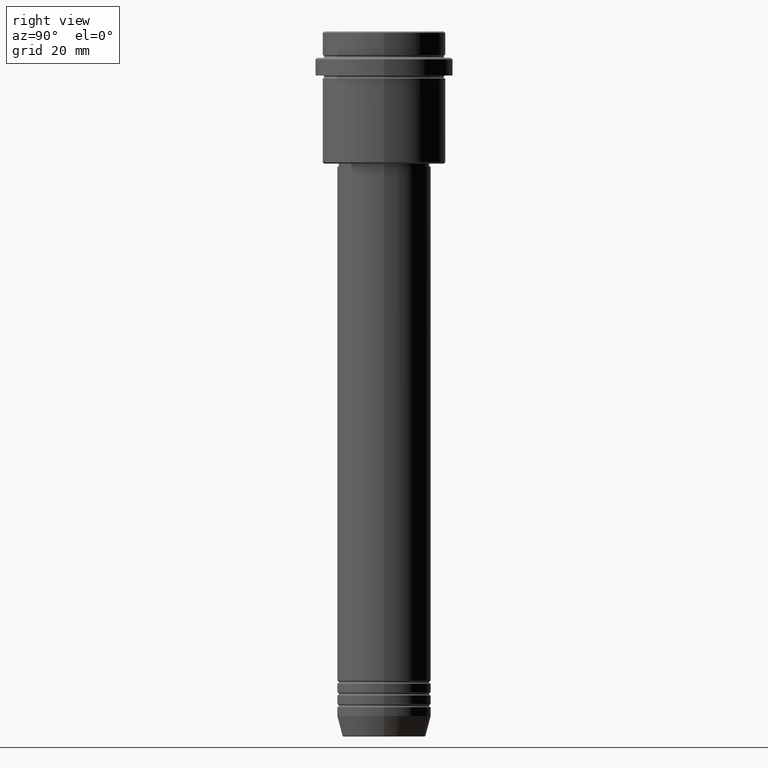
[diagram: clean part render]
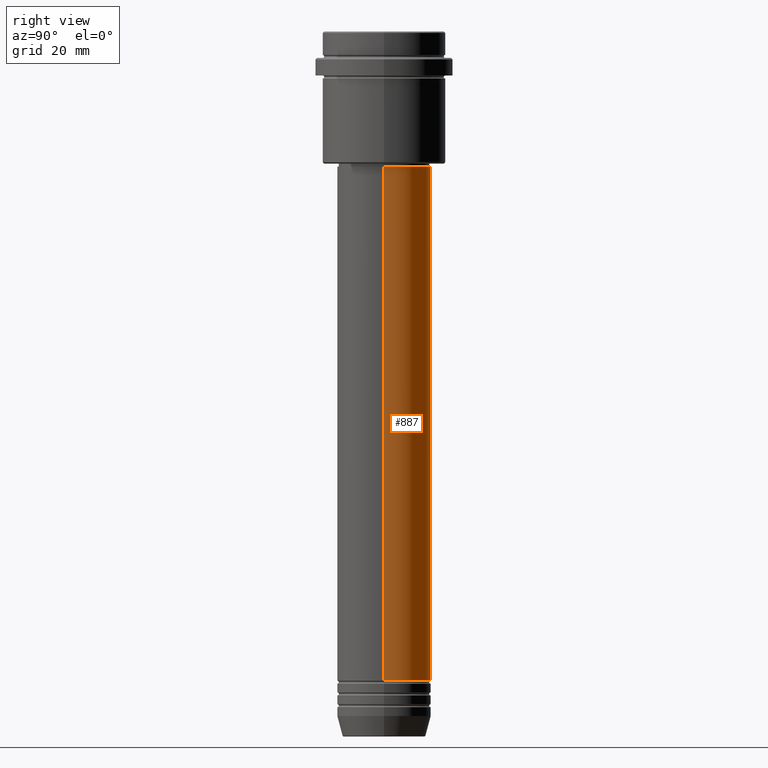
[diagram: same view with one face highlighted and labeled with its STEP entity id]
A machine part, right view. The second image highlights one B-rep face of the part: STEP entity #887.
In plain terms, the highlighted cylindrical surface (partial cylindrical patch) has radius 16 mm, axis along (-0, -0, 1).
Its self-contained STEP definition (entity closure, byte-faithful):
#25 = EDGE_CURVE ( 'NONE', #1151, #840, #1369, .T. ) ;
#73 = EDGE_LOOP ( 'NONE', ( #1170, #87, #358, #201 ) ) ;
#75 = VECTOR ( 'NONE', #687, 1000.000000000000000 ) ;
#87 = ORIENTED_EDGE ( 'NONE', *, *, #1246, .T. ) ;
#104 = DIRECTION ( 'NONE',  ( -0.000000000000000000, -0.000000000000000000, 1.000000000000000000 ) ) ;
#145 = FACE_OUTER_BOUND ( 'NONE', #73, .T. ) ;
#156 = DIRECTION ( 'NONE',  ( 1.000000000000000000, 0.000000000000000000, 0.000000000000000000 ) ) ;
#201 = ORIENTED_EDGE ( 'NONE', *, *, #884, .F. ) ;
#251 = CARTESIAN_POINT ( 'NONE',  ( 16.00000000000000000, 0.000000000000000000, 0.000000000000000000 ) ) ;
#265 = LINE ( 'NONE', #251, #75 ) ;
#350 = CARTESIAN_POINT ( 'NONE',  ( 16.00000000000000355, 0.000000000000000000, -46.00000000000002132 ) ) ;
#358 = ORIENTED_EDGE ( 'NONE', *, *, #872, .F. ) ;
#382 = DIRECTION ( 'NONE',  ( 1.000000000000000000, 0.000000000000000000, 0.000000000000000000 ) ) ;
#449 = VERTEX_POINT ( 'NONE', #350 ) ;
#462 = DIRECTION ( 'NONE',  ( -0.000000000000000000, -0.000000000000000000, 1.000000000000000000 ) ) ;
#466 = CARTESIAN_POINT ( 'NONE',  ( -16.00000000000000000, 1.959434878635765131E-15, 0.000000000000000000 ) ) ;
#474 = CARTESIAN_POINT ( 'NONE',  ( -16.00000000000000000, 1.959434878635765131E-15, -220.9999999999999432 ) ) ;
#536 = DIRECTION ( 'NONE',  ( 1.000000000000000000, 0.000000000000000000, 0.000000000000000000 ) ) ;
#563 = CARTESIAN_POINT ( 'NONE',  ( 0.000000000000000000, 0.000000000000000000, -46.00000000000002132 ) ) ;
#623 = CARTESIAN_POINT ( 'NONE',  ( 0.000000000000000000, 0.000000000000000000, -220.9999999999999432 ) ) ;
#676 = VERTEX_POINT ( 'NONE', #1189 ) ;
#687 = DIRECTION ( 'NONE',  ( -0.000000000000000000, -0.000000000000000000, 1.000000000000000000 ) ) ;
#721 = AXIS2_PLACEMENT_3D ( 'NONE', #894, #462, #156 ) ;
#790 = AXIS2_PLACEMENT_3D ( 'NONE', #563, #1114, #382 ) ;
#800 = CYLINDRICAL_SURFACE ( 'NONE', #721, 16.00000000000000000 ) ;
#840 = VERTEX_POINT ( 'NONE', #474 ) ;
#872 = EDGE_CURVE ( 'NONE', #449, #676, #1039, .T. ) ;
#884 = EDGE_CURVE ( 'NONE', #1151, #449, #265, .T. ) ;
#887 = ADVANCED_FACE ( 'NONE', ( #145 ), #800, .T. ) ;
#894 = CARTESIAN_POINT ( 'NONE',  ( 0.000000000000000000, 0.000000000000000000, 0.000000000000000000 ) ) ;
#900 = AXIS2_PLACEMENT_3D ( 'NONE', #623, #104, #536 ) ;
#1039 = CIRCLE ( 'NONE', #790, 16.00000000000000355 ) ;
#1090 = CARTESIAN_POINT ( 'NONE',  ( 16.00000000000000000, 0.000000000000000000, -220.9999999999999432 ) ) ;
#1114 = DIRECTION ( 'NONE',  ( -0.000000000000000000, -0.000000000000000000, 1.000000000000000000 ) ) ;
#1116 = VECTOR ( 'NONE', #1316, 1000.000000000000000 ) ;
#1151 = VERTEX_POINT ( 'NONE', #1090 ) ;
#1170 = ORIENTED_EDGE ( 'NONE', *, *, #25, .T. ) ;
#1189 = CARTESIAN_POINT ( 'NONE',  ( -16.00000000000000355, 1.959434878635765526E-15, -46.00000000000002132 ) ) ;
#1233 = LINE ( 'NONE', #466, #1116 ) ;
#1246 = EDGE_CURVE ( 'NONE', #840, #676, #1233, .T. ) ;
#1316 = DIRECTION ( 'NONE',  ( -0.000000000000000000, -0.000000000000000000, 1.000000000000000000 ) ) ;
#1369 = CIRCLE ( 'NONE', #900, 16.00000000000000000 ) ;